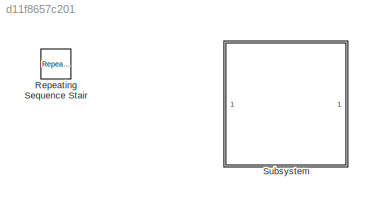
MODEL slx_d11f8657c201
KIND model
CONFIG AbsTol = auto
CONFIG EnableMultiTasking = off
CONFIG FixedStep = auto
CONFIG MaxStep = auto
CONFIG MinStep = auto
CONFIG RelTol = 1e-3
CONFIG SampleTimeConstraint = Unconstrained
CONFIG SolverName = VariableStepAuto
CONFIG StartTime = 0.0
CONFIG StopTime = 10.0
BLOCK [Reference] Repeating Sequence Stair  REF=simulink/Sources/Repeating
Sequence
Stair
  SourceBlock = simulink/Sources/Repeating\nSequence\nStair
  SourceType = Repeating Sequence Stair
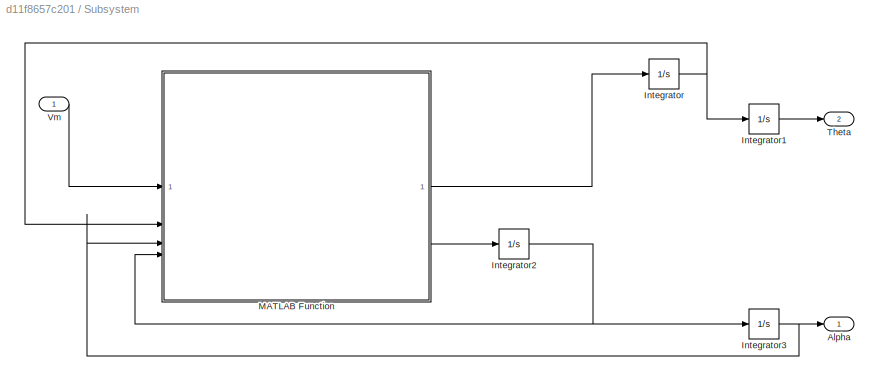
BLOCK [SubSystem] Subsystem
BLOCK [Outport] Subsystem/Alpha
BLOCK [Integrator] Subsystem/Integrator
BLOCK [Integrator] Subsystem/Integrator1
BLOCK [Integrator] Subsystem/Integrator2
BLOCK [Integrator] Subsystem/Integrator3
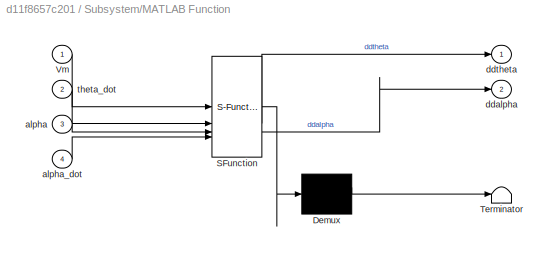
BLOCK [SubSystem] Subsystem/MATLAB Function
  ErrorFcn = Stateflow.Translate.translate
  PermitHierarchicalResolution = ExplicitOnly
  SFBlockType = MATLAB Function
  TreatAsAtomicUnit = on
BLOCK [Demux] Subsystem/MATLAB Function/ Demux 
  Outputs = 1
BLOCK [S-Function] Subsystem/MATLAB Function/ SFunction 
  EnableBusSupport = on
  FunctionName = sf_sfun
  PortCounts = [4 3]
  SFcnIsStateOwnerBlock = off
  SFunctionDeploymentMode = off
  Tag = Stateflow S-Function 2
BLOCK [Terminator] Subsystem/MATLAB Function/ Terminator 
BLOCK [Inport] Subsystem/MATLAB Function/Vm
BLOCK [Inport] Subsystem/MATLAB Function/alpha
  Port = 3
BLOCK [Inport] Subsystem/MATLAB Function/alpha_dot
  Port = 4
BLOCK [Outport] Subsystem/MATLAB Function/ddalpha
  Port = 2
BLOCK [Outport] Subsystem/MATLAB Function/ddtheta
BLOCK [Inport] Subsystem/MATLAB Function/theta_dot
  Port = 2
BLOCK [Outport] Subsystem/Theta
  Port = 2
BLOCK [Inport] Subsystem/Vm
LINE Subsystem/Integrator1:1 -> Subsystem/Theta:1
NET Subsystem/Integrator2:1 -> Subsystem/Integrator3:1, Subsystem/MATLAB Function:4
NET Subsystem/Integrator3:1 -> Subsystem/Alpha:1, Subsystem/MATLAB Function:3
NET Subsystem/Integrator:1 -> Subsystem/Integrator1:1, Subsystem/MATLAB Function:2
LINE Subsystem/MATLAB Function:1 -> Subsystem/Integrator:1
LINE Subsystem/MATLAB Function:2 -> Subsystem/Integrator2:1
LINE Subsystem/Vm:1 -> Subsystem/MATLAB Function:1
note: NET lines group one-source signal fan-out (src -> all destinations, sorted); 1:1 wires keep LINE
CHART Subsystem/MATLAB Function states=1 transitions=1
  STATE_LABEL 'eML_blk_kernel()'
  STATE_LABEL 'SCRIPT:\nfunction [ddtheta, ddalpha] = rp_dynamics_from_voltage(Vm, theta_dot, alpha, alpha_dot)\n% Rotary pendulum dynamics solved concurrently using your given parameters.\n% Inputs:\n%   Vm         : motor voltage (V)\n%   theta_dot  : rotary arm angular rate (rad/s)\n%   alpha      : pendulum angle (rad)\n%   alpha_dot  : pendulum angular rate (rad/s)\n%   Dr, Dp     : viscous damping (N·m·s/rad) abou...<+1583ch>'
CHART  states=0 transitions=0
